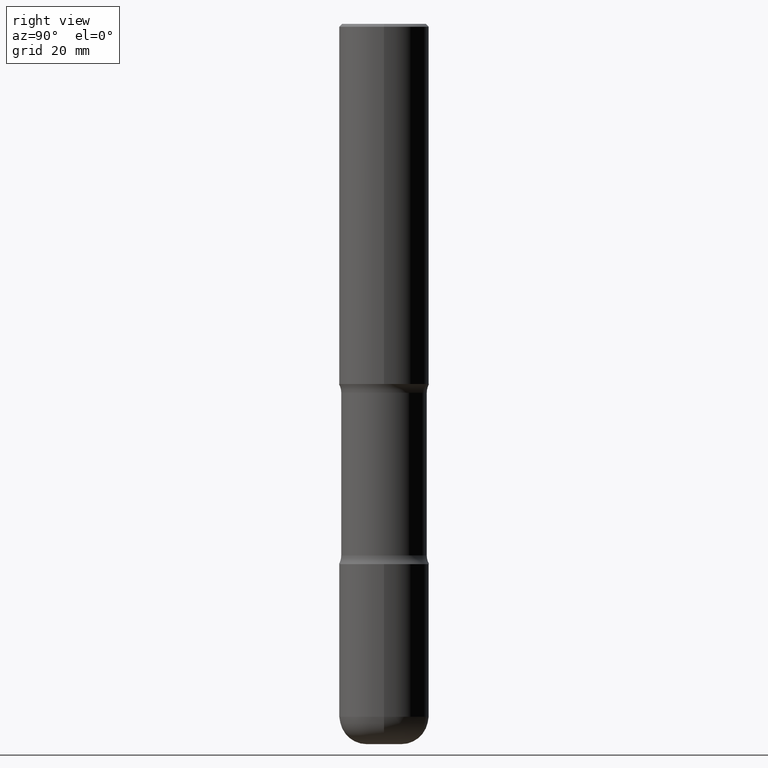
[diagram: clean part render]
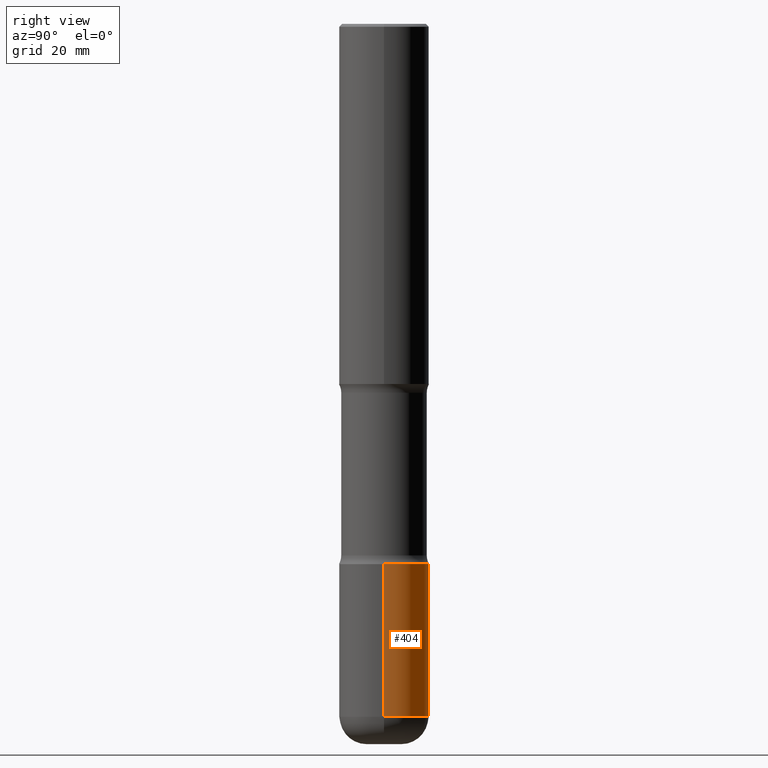
[diagram: same view with one face highlighted and labeled with its STEP entity id]
A machine part, right view. The second image highlights one B-rep face of the part: STEP entity #404.
In plain terms, the highlighted cylindrical surface (partial cylindrical patch) has radius 7.9375 mm, axis along (-0, 0, 1).
Its self-contained STEP definition (entity closure, byte-faithful):
#12 = DIRECTION ( 'NONE',  ( -2.445468806185136597E-29, 3.491481338843145583E-15, 1.000000000000000000 ) ) ;
#13 = DIRECTION ( 'NONE',  ( -2.445468806185136877E-29, 3.491481338843145188E-15, 1.000000000000000000 ) ) ;
#30 = DIRECTION ( 'NONE',  ( -2.445468806185136877E-29, 3.491481338843145188E-15, 1.000000000000000000 ) ) ;
#58 = AXIS2_PLACEMENT_3D ( 'NONE', #390, #84, #475 ) ;
#71 = EDGE_CURVE ( 'NONE', #322, #243, #320, .T. ) ;
#75 = ORIENTED_EDGE ( 'NONE', *, *, #419, .F. ) ;
#84 = DIRECTION ( 'NONE',  ( -2.445468806185136597E-29, 3.491481338843145583E-15, 1.000000000000000000 ) ) ;
#100 = CARTESIAN_POINT ( 'NONE',  ( -0.3125000000000001665, 2.220446049250314264E-15, -1.537167215704658792E-29 ) ) ;
#104 = EDGE_LOOP ( 'NONE', ( #117, #275, #554, #75 ) ) ;
#117 = ORIENTED_EDGE ( 'NONE', *, *, #151, .T. ) ;
#133 = CARTESIAN_POINT ( 'NONE',  ( 9.170508023194261117E-29, -1.309305502066179584E-14, -3.749999999999999556 ) ) ;
#151 = EDGE_CURVE ( 'NONE', #374, #467, #227, .T. ) ;
#180 = DIRECTION ( 'NONE',  ( 1.000000000000000000, -6.982962677686264344E-15, 0.000000000000000000 ) ) ;
#181 = VECTOR ( 'NONE', #30, 39.37007874015748143 ) ;
#210 = CARTESIAN_POINT ( 'NONE',  ( -0.3125000000000001665, -1.457357919058521389E-14, -4.810000000000000497 ) ) ;
#214 = CYLINDRICAL_SURFACE ( 'NONE', #58, 0.3125000000000001665 ) ;
#227 = CIRCLE ( 'NONE', #547, 0.3125000000000002220 ) ;
#232 = CARTESIAN_POINT ( 'NONE',  ( 0.3125000000000001665, -1.527523085743875418E-14, -3.749999999999999556 ) ) ;
#243 = VERTEX_POINT ( 'NONE', #488 ) ;
#275 = ORIENTED_EDGE ( 'NONE', *, *, #545, .T. ) ;
#278 = CARTESIAN_POINT ( 'NONE',  ( 0.3125000000000001665, -1.897620107661249005E-14, -4.810000000000000497 ) ) ;
#286 = LINE ( 'NONE', #288, #181 ) ;
#288 = CARTESIAN_POINT ( 'NONE',  ( 0.3125000000000001665, -2.182175836776959530E-15, 1.523805242436230636E-29 ) ) ;
#295 = VECTOR ( 'NONE', #13, 39.37007874015748143 ) ;
#301 = DIRECTION ( 'NONE',  ( 1.000000000000000000, -6.982962677686265133E-15, 0.000000000000000000 ) ) ;
#308 = LINE ( 'NONE', #100, #295 ) ;
#320 = CIRCLE ( 'NONE', #388, 0.3125000000000001665 ) ;
#322 = VERTEX_POINT ( 'NONE', #232 ) ;
#332 = FACE_OUTER_BOUND ( 'NONE', #104, .T. ) ;
#374 = VERTEX_POINT ( 'NONE', #278 ) ;
#388 = AXIS2_PLACEMENT_3D ( 'NONE', #133, #12, #301 ) ;
#390 = CARTESIAN_POINT ( 'NONE',  ( 0.000000000000000000, 0.000000000000000000, 0.000000000000000000 ) ) ;
#404 = ADVANCED_FACE ( 'NONE', ( #332 ), #214, .T. ) ;
#406 = DIRECTION ( 'NONE',  ( -2.445468806185136597E-29, 3.491481338843145583E-15, 1.000000000000000000 ) ) ;
#410 = CARTESIAN_POINT ( 'NONE',  ( 1.176270495775050811E-28, -1.679402523983553013E-14, -4.810000000000000497 ) ) ;
#419 = EDGE_CURVE ( 'NONE', #374, #322, #286, .T. ) ;
#467 = VERTEX_POINT ( 'NONE', #210 ) ;
#475 = DIRECTION ( 'NONE',  ( 1.000000000000000000, -6.982962677686266711E-15, 4.876176775795935232E-29 ) ) ;
#488 = CARTESIAN_POINT ( 'NONE',  ( -0.3125000000000001665, -1.272309408099834754E-14, -3.749999999999999556 ) ) ;
#545 = EDGE_CURVE ( 'NONE', #467, #243, #308, .T. ) ;
#547 = AXIS2_PLACEMENT_3D ( 'NONE', #410, #406, #180 ) ;
#554 = ORIENTED_EDGE ( 'NONE', *, *, #71, .F. ) ;